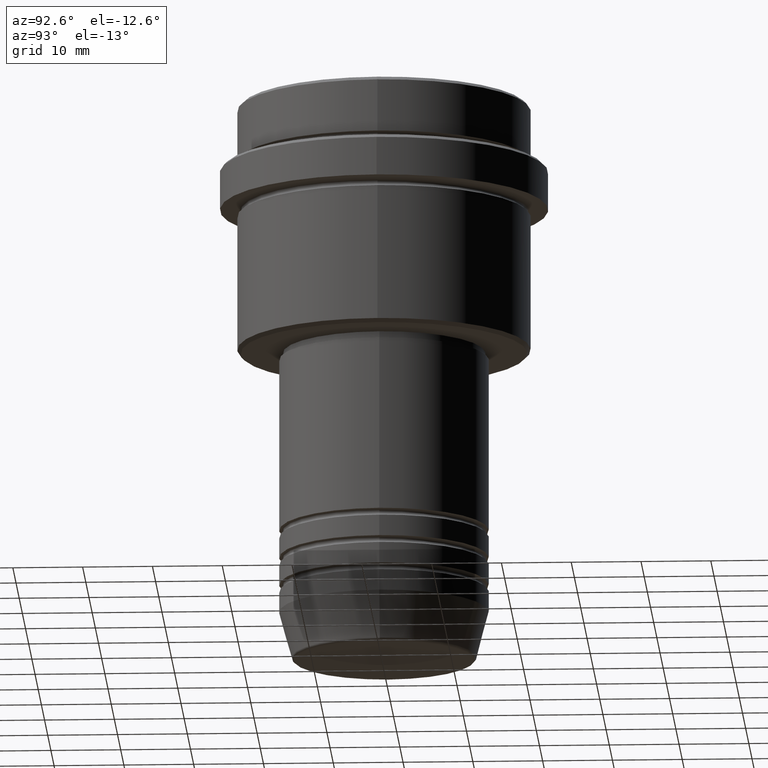
[diagram: clean part render]
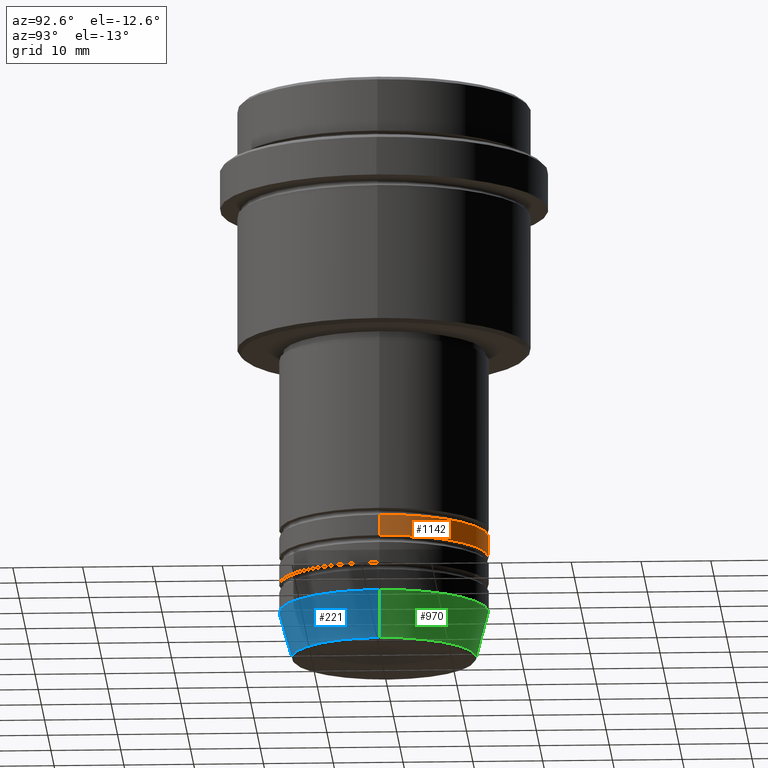
[diagram: same view with three faces highlighted in distinct colors, each labeled with its STEP entity id]
A machine part, auxiliary view with three faces highlighted in distinct colors.
Their STEP definitions:

[orange] entity #1142 — the highlighted cylindrical surface (partial cylindrical patch) has radius 15 mm, axis along (-0, -0, 1).
#43 = DIRECTION ( 'NONE',  ( 1.000000000000000000, 0.000000000000000000, 0.000000000000000000 ) ) ;
#112 = CARTESIAN_POINT ( 'NONE',  ( -15.00000000000000000, 1.836970198721029589E-15, -62.99999999999988631 ) ) ;
#143 = VERTEX_POINT ( 'NONE', #309 ) ;
#153 = VECTOR ( 'NONE', #983, 1000.000000000000000 ) ;
#156 = VECTOR ( 'NONE', #923, 1000.000000000000000 ) ;
#242 = DIRECTION ( 'NONE',  ( 1.000000000000000000, 0.000000000000000000, 0.000000000000000000 ) ) ;
#246 = EDGE_CURVE ( 'NONE', #143, #744, #1052, .T. ) ;
#282 = VERTEX_POINT ( 'NONE', #112 ) ;
#309 = CARTESIAN_POINT ( 'NONE',  ( 15.00000000000000000, 0.000000000000000000, -65.99999999999988631 ) ) ;
#317 = DIRECTION ( 'NONE',  ( -0.000000000000000000, -0.000000000000000000, 1.000000000000000000 ) ) ;
#330 = ORIENTED_EDGE ( 'NONE', *, *, #397, .T. ) ;
#338 = ORIENTED_EDGE ( 'NONE', *, *, #1299, .T. ) ;
#351 = CARTESIAN_POINT ( 'NONE',  ( 0.000000000000000000, 0.000000000000000000, 0.000000000000000000 ) ) ;
#368 = CARTESIAN_POINT ( 'NONE',  ( 0.000000000000000000, 0.000000000000000000, -65.99999999999988631 ) ) ;
#375 = CARTESIAN_POINT ( 'NONE',  ( -15.00000000000000000, 1.836970198721029589E-15, -65.99999999999988631 ) ) ;
#397 = EDGE_CURVE ( 'NONE', #1294, #282, #1251, .T. ) ;
#438 = ORIENTED_EDGE ( 'NONE', *, *, #246, .F. ) ;
#453 = CIRCLE ( 'NONE', #557, 15.00000000000000000 ) ;
#541 = CARTESIAN_POINT ( 'NONE',  ( 15.00000000000000000, 0.000000000000000000, 0.000000000000000000 ) ) ;
#557 = AXIS2_PLACEMENT_3D ( 'NONE', #1304, #317, #761 ) ;
#598 = EDGE_CURVE ( 'NONE', #744, #282, #453, .T. ) ;
#640 = AXIS2_PLACEMENT_3D ( 'NONE', #351, #993, #242 ) ;
#744 = VERTEX_POINT ( 'NONE', #1224 ) ;
#761 = DIRECTION ( 'NONE',  ( 1.000000000000000000, 0.000000000000000000, 0.000000000000000000 ) ) ;
#772 = ORIENTED_EDGE ( 'NONE', *, *, #598, .F. ) ;
#889 = AXIS2_PLACEMENT_3D ( 'NONE', #368, #1354, #43 ) ;
#908 = CARTESIAN_POINT ( 'NONE',  ( -15.00000000000000000, 1.836970198721029589E-15, 0.000000000000000000 ) ) ;
#923 = DIRECTION ( 'NONE',  ( -0.000000000000000000, -0.000000000000000000, 1.000000000000000000 ) ) ;
#983 = DIRECTION ( 'NONE',  ( -0.000000000000000000, -0.000000000000000000, 1.000000000000000000 ) ) ;
#993 = DIRECTION ( 'NONE',  ( -0.000000000000000000, -0.000000000000000000, 1.000000000000000000 ) ) ;
#1001 = FACE_OUTER_BOUND ( 'NONE', #1159, .T. ) ;
#1021 = CIRCLE ( 'NONE', #889, 15.00000000000000000 ) ;
#1052 = LINE ( 'NONE', #541, #153 ) ;
#1142 = ADVANCED_FACE ( 'NONE', ( #1001 ), #1320, .T. ) ;
#1159 = EDGE_LOOP ( 'NONE', ( #338, #330, #772, #438 ) ) ;
#1224 = CARTESIAN_POINT ( 'NONE',  ( 15.00000000000000000, 0.000000000000000000, -62.99999999999988631 ) ) ;
#1251 = LINE ( 'NONE', #908, #156 ) ;
#1294 = VERTEX_POINT ( 'NONE', #375 ) ;
#1299 = EDGE_CURVE ( 'NONE', #143, #1294, #1021, .T. ) ;
#1304 = CARTESIAN_POINT ( 'NONE',  ( 0.000000000000000000, 0.000000000000000000, -62.99999999999988631 ) ) ;
#1320 = CYLINDRICAL_SURFACE ( 'NONE', #640, 15.00000000000000000 ) ;
#1354 = DIRECTION ( 'NONE',  ( -0.000000000000000000, -0.000000000000000000, 1.000000000000000000 ) ) ;

[blue] entity #221 — the highlighted conical surface has half-angle 15 deg.
#7 = ORIENTED_EDGE ( 'NONE', *, *, #608, .T. ) ;
#15 = AXIS2_PLACEMENT_3D ( 'NONE', #1279, #953, #54 ) ;
#20 = ORIENTED_EDGE ( 'NONE', *, *, #583, .F. ) ;
#54 = DIRECTION ( 'NONE',  ( 1.000000000000000000, 0.000000000000000000, 0.000000000000000000 ) ) ;
#62 = VECTOR ( 'NONE', #655, 1000.000000000000114 ) ;
#90 = EDGE_CURVE ( 'NONE', #1293, #625, #782, .T. ) ;
#131 = AXIS2_PLACEMENT_3D ( 'NONE', #722, #599, #1032 ) ;
#132 = AXIS2_PLACEMENT_3D ( 'NONE', #398, #289, #738 ) ;
#210 = LINE ( 'NONE', #542, #62 ) ;
#221 = ADVANCED_FACE ( 'NONE', ( #861 ), #1025, .T. ) ;
#258 = ORIENTED_EDGE ( 'NONE', *, *, #662, .F. ) ;
#289 = DIRECTION ( 'NONE',  ( -0.000000000000000000, -0.000000000000000000, 1.000000000000000000 ) ) ;
#336 = CARTESIAN_POINT ( 'NONE',  ( 15.00000000000000000, 0.000000000000000000, -74.00000000000000000 ) ) ;
#398 = CARTESIAN_POINT ( 'NONE',  ( 0.000000000000000000, 0.000000000000000000, -74.00000000000000000 ) ) ;
#435 = VECTOR ( 'NONE', #523, 1000.000000000000114 ) ;
#523 = DIRECTION ( 'NONE',  ( -0.2588190451025211281, 3.169619151431769872E-17, 0.9659258262890680902 ) ) ;
#542 = CARTESIAN_POINT ( 'NONE',  ( 15.00000000000000000, 0.000000000000000000, -74.00000000000000000 ) ) ;
#583 = EDGE_CURVE ( 'NONE', #651, #1136, #1083, .T. ) ;
#599 = DIRECTION ( 'NONE',  ( -0.000000000000000000, -0.000000000000000000, 1.000000000000000000 ) ) ;
#608 = EDGE_CURVE ( 'NONE', #625, #1136, #210, .T. ) ;
#625 = VERTEX_POINT ( 'NONE', #1112 ) ;
#651 = VERTEX_POINT ( 'NONE', #1319 ) ;
#655 = DIRECTION ( 'NONE',  ( 0.2588190451025211281, 0.000000000000000000, 0.9659258262890680902 ) ) ;
#662 = EDGE_CURVE ( 'NONE', #1293, #651, #1173, .T. ) ;
#722 = CARTESIAN_POINT ( 'NONE',  ( 0.000000000000000000, 0.000000000000000000, -74.00000000000000000 ) ) ;
#738 = DIRECTION ( 'NONE',  ( 1.000000000000000000, 0.000000000000000000, 0.000000000000000000 ) ) ;
#782 = CIRCLE ( 'NONE', #15, 13.22365507213718772 ) ;
#861 = FACE_OUTER_BOUND ( 'NONE', #1210, .T. ) ;
#953 = DIRECTION ( 'NONE',  ( -0.000000000000000000, -0.000000000000000000, 1.000000000000000000 ) ) ;
#957 = CARTESIAN_POINT ( 'NONE',  ( -15.00000000000000000, 1.836970198721029589E-15, -74.00000000000000000 ) ) ;
#1025 = CONICAL_SURFACE ( 'NONE', #131, 15.00000000000000000, 0.2617993877991498519 ) ;
#1032 = DIRECTION ( 'NONE',  ( 1.000000000000000000, 0.000000000000000000, 0.000000000000000000 ) ) ;
#1083 = CIRCLE ( 'NONE', #132, 15.00000000000000000 ) ;
#1112 = CARTESIAN_POINT ( 'NONE',  ( 13.22365507213718772, 0.000000000000000000, -80.62940952255125637 ) ) ;
#1136 = VERTEX_POINT ( 'NONE', #336 ) ;
#1173 = LINE ( 'NONE', #957, #435 ) ;
#1210 = EDGE_LOOP ( 'NONE', ( #258, #1260, #7, #20 ) ) ;
#1260 = ORIENTED_EDGE ( 'NONE', *, *, #90, .T. ) ;
#1279 = CARTESIAN_POINT ( 'NONE',  ( 0.000000000000000000, 0.000000000000000000, -80.62940952255125637 ) ) ;
#1293 = VERTEX_POINT ( 'NONE', #1347 ) ;
#1319 = CARTESIAN_POINT ( 'NONE',  ( -15.00000000000000000, 1.836970198721029589E-15, -74.00000000000000000 ) ) ;
#1347 = CARTESIAN_POINT ( 'NONE',  ( -13.22365507213718772, 1.728200442216588189E-15, -80.62940952255125637 ) ) ;

[green] entity #970 — the highlighted conical surface has half-angle 15 deg.
#62 = VECTOR ( 'NONE', #655, 1000.000000000000114 ) ;
#67 = DIRECTION ( 'NONE',  ( -0.000000000000000000, -0.000000000000000000, 1.000000000000000000 ) ) ;
#103 = ORIENTED_EDGE ( 'NONE', *, *, #662, .T. ) ;
#210 = LINE ( 'NONE', #542, #62 ) ;
#311 = DIRECTION ( 'NONE',  ( 1.000000000000000000, 0.000000000000000000, 0.000000000000000000 ) ) ;
#336 = CARTESIAN_POINT ( 'NONE',  ( 15.00000000000000000, 0.000000000000000000, -74.00000000000000000 ) ) ;
#435 = VECTOR ( 'NONE', #523, 1000.000000000000114 ) ;
#459 = DIRECTION ( 'NONE',  ( -0.000000000000000000, -0.000000000000000000, 1.000000000000000000 ) ) ;
#522 = CARTESIAN_POINT ( 'NONE',  ( 0.000000000000000000, 0.000000000000000000, -80.62940952255125637 ) ) ;
#523 = DIRECTION ( 'NONE',  ( -0.2588190451025211281, 3.169619151431769872E-17, 0.9659258262890680902 ) ) ;
#542 = CARTESIAN_POINT ( 'NONE',  ( 15.00000000000000000, 0.000000000000000000, -74.00000000000000000 ) ) ;
#608 = EDGE_CURVE ( 'NONE', #625, #1136, #210, .T. ) ;
#625 = VERTEX_POINT ( 'NONE', #1112 ) ;
#630 = ORIENTED_EDGE ( 'NONE', *, *, #608, .F. ) ;
#636 = FACE_OUTER_BOUND ( 'NONE', #1335, .T. ) ;
#651 = VERTEX_POINT ( 'NONE', #1319 ) ;
#655 = DIRECTION ( 'NONE',  ( 0.2588190451025211281, 0.000000000000000000, 0.9659258262890680902 ) ) ;
#662 = EDGE_CURVE ( 'NONE', #1293, #651, #1173, .T. ) ;
#683 = CIRCLE ( 'NONE', #1076, 13.22365507213718772 ) ;
#705 = AXIS2_PLACEMENT_3D ( 'NONE', #1306, #1398, #311 ) ;
#757 = EDGE_CURVE ( 'NONE', #1136, #651, #1177, .T. ) ;
#789 = CARTESIAN_POINT ( 'NONE',  ( 0.000000000000000000, 0.000000000000000000, -74.00000000000000000 ) ) ;
#831 = ORIENTED_EDGE ( 'NONE', *, *, #757, .F. ) ;
#904 = DIRECTION ( 'NONE',  ( 1.000000000000000000, 0.000000000000000000, 0.000000000000000000 ) ) ;
#909 = CONICAL_SURFACE ( 'NONE', #705, 15.00000000000000000, 0.2617993877991498519 ) ;
#922 = ORIENTED_EDGE ( 'NONE', *, *, #1017, .T. ) ;
#957 = CARTESIAN_POINT ( 'NONE',  ( -15.00000000000000000, 1.836970198721029589E-15, -74.00000000000000000 ) ) ;
#965 = DIRECTION ( 'NONE',  ( 1.000000000000000000, 0.000000000000000000, 0.000000000000000000 ) ) ;
#970 = ADVANCED_FACE ( 'NONE', ( #636 ), #909, .T. ) ;
#1017 = EDGE_CURVE ( 'NONE', #625, #1293, #683, .T. ) ;
#1076 = AXIS2_PLACEMENT_3D ( 'NONE', #522, #67, #965 ) ;
#1112 = CARTESIAN_POINT ( 'NONE',  ( 13.22365507213718772, 0.000000000000000000, -80.62940952255125637 ) ) ;
#1136 = VERTEX_POINT ( 'NONE', #336 ) ;
#1173 = LINE ( 'NONE', #957, #435 ) ;
#1177 = CIRCLE ( 'NONE', #1222, 15.00000000000000000 ) ;
#1222 = AXIS2_PLACEMENT_3D ( 'NONE', #789, #459, #904 ) ;
#1293 = VERTEX_POINT ( 'NONE', #1347 ) ;
#1306 = CARTESIAN_POINT ( 'NONE',  ( 0.000000000000000000, 0.000000000000000000, -74.00000000000000000 ) ) ;
#1319 = CARTESIAN_POINT ( 'NONE',  ( -15.00000000000000000, 1.836970198721029589E-15, -74.00000000000000000 ) ) ;
#1335 = EDGE_LOOP ( 'NONE', ( #922, #103, #831, #630 ) ) ;
#1347 = CARTESIAN_POINT ( 'NONE',  ( -13.22365507213718772, 1.728200442216588189E-15, -80.62940952255125637 ) ) ;
#1398 = DIRECTION ( 'NONE',  ( -0.000000000000000000, -0.000000000000000000, 1.000000000000000000 ) ) ;